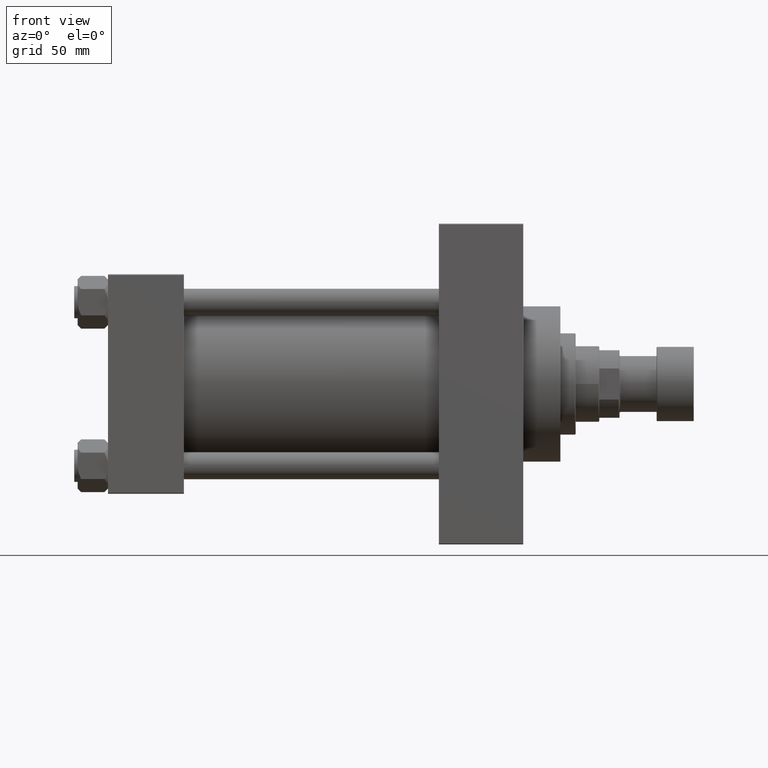
[diagram: clean part render]
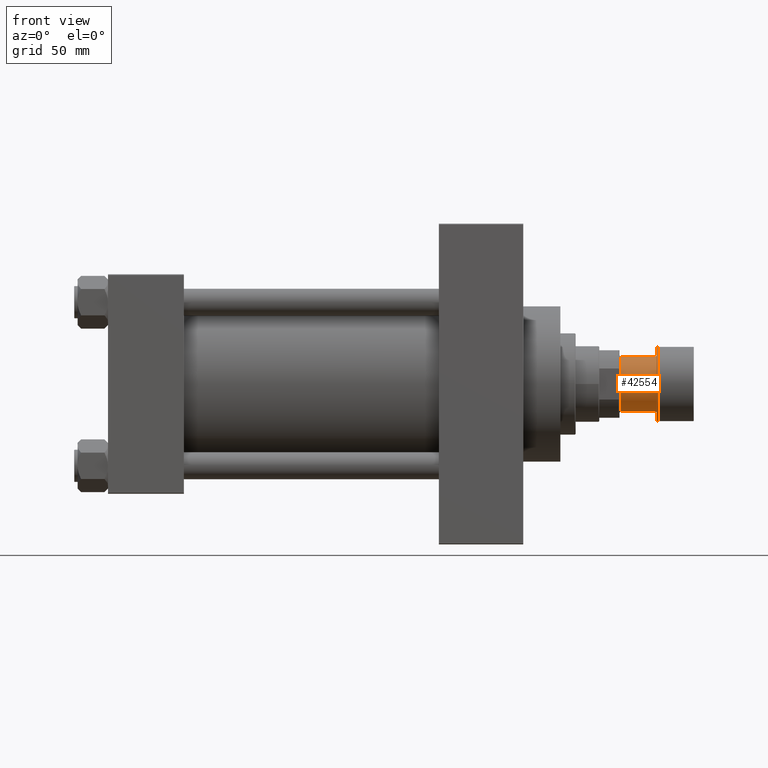
[diagram: same view with one face highlighted and labeled with its STEP entity id]
A machine part, front view. The second image highlights one B-rep face of the part: STEP entity #42554.
In plain terms, the highlighted cylindrical surface (edge-blend (fillet) strip) has radius 16.5 mm, axis along (1, 0, 0).
Its self-contained STEP definition (entity closure, byte-faithful):
#433 = DIRECTION ( 'NONE',  ( -1.000000000000000000, 0.000000000000000000, 0.000000000000000000 ) ) ;
#1891 = CARTESIAN_POINT ( 'NONE',  ( 16.50000000000000000, 0.000000000000000000, -22.00000000000000000 ) ) ;
#3693 = EDGE_CURVE ( 'NONE', #10170, #40262, #4586, .T. ) ;
#4586 = CIRCLE ( 'NONE', #46521, 16.50000000000000000 ) ;
#4758 = EDGE_CURVE ( 'NONE', #42111, #30219, #19369, .T. ) ;
#4821 = LINE ( 'NONE', #8465, #6483 ) ;
#5238 = CARTESIAN_POINT ( 'NONE',  ( -16.50000000000000000, 2.020667218593133100E-15, -22.00000000000000000 ) ) ;
#6192 = CARTESIAN_POINT ( 'NONE',  ( -16.50000000000000000, 2.020667218593133100E-15, -43.50000000000000000 ) ) ;
#6483 = VECTOR ( 'NONE', #38122, 1000.000000000000000 ) ;
#8465 = CARTESIAN_POINT ( 'NONE',  ( -16.50000000000000000, 2.020667218593133100E-15, -43.50000000000000000 ) ) ;
#10170 = VERTEX_POINT ( 'NONE', #12739 ) ;
#11349 = EDGE_CURVE ( 'NONE', #10170, #42111, #47921, .T. ) ;
#11384 = DIRECTION ( 'NONE',  ( 0.000000000000000000, 0.000000000000000000, -1.000000000000000000 ) ) ;
#11588 = AXIS2_PLACEMENT_3D ( 'NONE', #37386, #33991, #433 ) ;
#12739 = CARTESIAN_POINT ( 'NONE',  ( 16.50000000000000000, 0.000000000000000000, -43.50000000000000000 ) ) ;
#12903 = AXIS2_PLACEMENT_3D ( 'NONE', #19704, #26044, #40876 ) ;
#14134 = CARTESIAN_POINT ( 'NONE',  ( 16.50000000000000000, 0.000000000000000000, -43.50000000000000000 ) ) ;
#19369 = CIRCLE ( 'NONE', #11588, 16.50000000000000000 ) ;
#19704 = CARTESIAN_POINT ( 'NONE',  ( 0.000000000000000000, 0.000000000000000000, -43.50000000000000000 ) ) ;
#21872 = EDGE_CURVE ( 'NONE', #40262, #30219, #4821, .T. ) ;
#22398 = FACE_OUTER_BOUND ( 'NONE', #31787, .T. ) ;
#25014 = ORIENTED_EDGE ( 'NONE', *, *, #21872, .F. ) ;
#26044 = DIRECTION ( 'NONE',  ( -0.000000000000000000, -0.000000000000000000, 1.000000000000000000 ) ) ;
#27878 = ORIENTED_EDGE ( 'NONE', *, *, #3693, .F. ) ;
#29619 = ORIENTED_EDGE ( 'NONE', *, *, #4758, .T. ) ;
#30219 = VERTEX_POINT ( 'NONE', #5238 ) ;
#30418 = CYLINDRICAL_SURFACE ( 'NONE', #12903, 16.50000000000000000 ) ;
#31787 = EDGE_LOOP ( 'NONE', ( #25014, #27878, #39917, #29619 ) ) ;
#33991 = DIRECTION ( 'NONE',  ( 0.000000000000000000, 0.000000000000000000, -1.000000000000000000 ) ) ;
#37386 = CARTESIAN_POINT ( 'NONE',  ( 0.000000000000000000, 0.000000000000000000, -22.00000000000000000 ) ) ;
#38122 = DIRECTION ( 'NONE',  ( -0.000000000000000000, -0.000000000000000000, 1.000000000000000000 ) ) ;
#39917 = ORIENTED_EDGE ( 'NONE', *, *, #11349, .T. ) ;
#40262 = VERTEX_POINT ( 'NONE', #6192 ) ;
#40818 = CARTESIAN_POINT ( 'NONE',  ( 0.000000000000000000, 0.000000000000000000, -43.50000000000000000 ) ) ;
#40876 = DIRECTION ( 'NONE',  ( 1.000000000000000000, 0.000000000000000000, 0.000000000000000000 ) ) ;
#42111 = VERTEX_POINT ( 'NONE', #1891 ) ;
#42554 = ADVANCED_FACE ( 'NONE', ( #22398 ), #30418, .T. ) ;
#43540 = VECTOR ( 'NONE', #44276, 1000.000000000000000 ) ;
#44276 = DIRECTION ( 'NONE',  ( -0.000000000000000000, -0.000000000000000000, 1.000000000000000000 ) ) ;
#44709 = DIRECTION ( 'NONE',  ( -1.000000000000000000, 0.000000000000000000, 0.000000000000000000 ) ) ;
#46521 = AXIS2_PLACEMENT_3D ( 'NONE', #40818, #11384, #44709 ) ;
#47921 = LINE ( 'NONE', #14134, #43540 ) ;